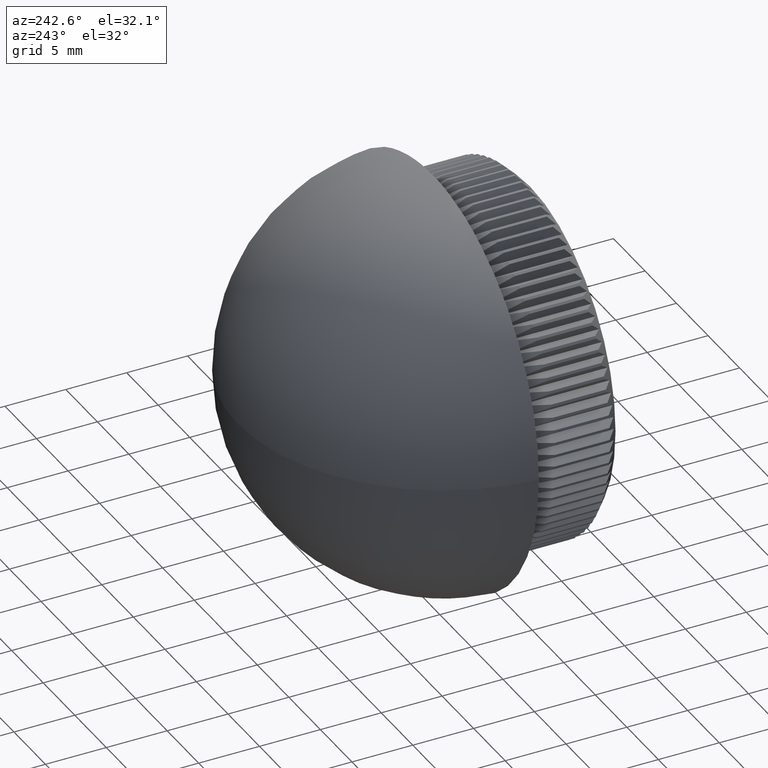
[diagram: clean part render]
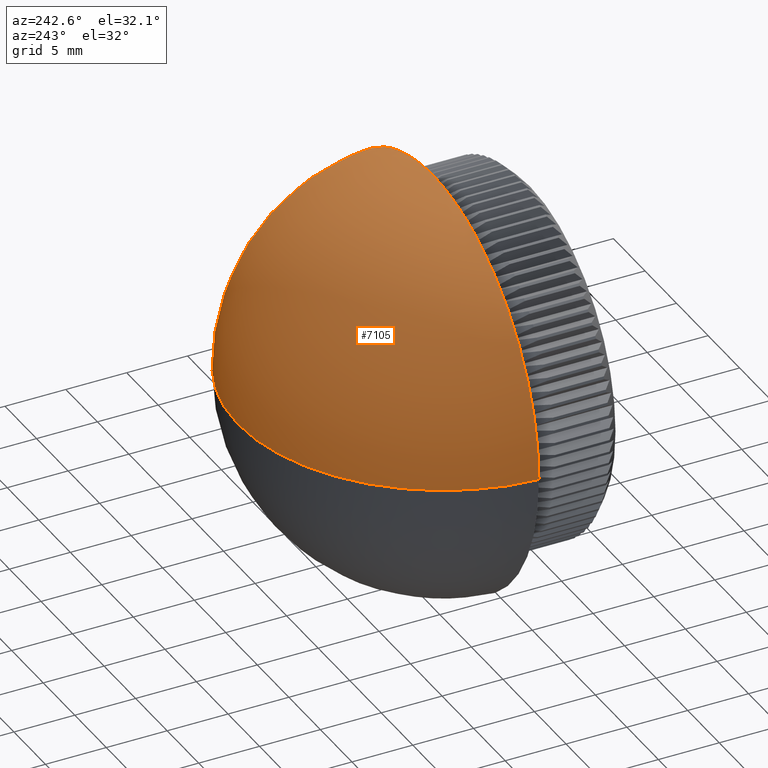
[diagram: same view with one face highlighted and labeled with its STEP entity id]
A machine part, auxiliary view. The second image highlights one B-rep face of the part: STEP entity #7105.
In plain terms, the highlighted spherical surface has radius 16.8726 mm.
Its self-contained STEP definition (entity closure, byte-faithful):
#145 = VERTEX_POINT ( 'NONE', #3077 ) ;
#428 = DIRECTION ( 'NONE',  ( -0.0000000000000000000, -1.000000000000000000, -0.0000000000000000000 ) ) ;
#800 = AXIS2_PLACEMENT_3D ( 'NONE', #14065, #3361, #12015 ) ;
#1845 = CIRCLE ( 'NONE', #1903, 16.85000000000000500 ) ;
#1903 = AXIS2_PLACEMENT_3D ( 'NONE', #21819, #428, #5976 ) ;
#2808 = CARTESIAN_POINT ( 'NONE',  ( 0.0000000000000000000, 7.127421874999999600, 0.0000000000000000000 ) ) ;
#3077 = CARTESIAN_POINT ( 'NONE',  ( 1.033147439707245100E-015, 24.00000000000000000, 0.0000000000000000000 ) ) ;
#3361 = DIRECTION ( 'NONE',  ( 0.0000000000000000000, 0.0000000000000000000, 1.000000000000000000 ) ) ;
#5535 = CARTESIAN_POINT ( 'NONE',  ( -16.85000000000000500, 7.999999999999998200, 2.063529856563290200E-015 ) ) ;
#5924 = EDGE_CURVE ( 'NONE', #145, #16692, #16172, .T. ) ;
#5976 = DIRECTION ( 'NONE',  ( 0.0000000000000000000, 0.0000000000000000000, -1.000000000000000000 ) ) ;
#6359 = SPHERICAL_SURFACE ( 'NONE', #800, 16.87257812500000400 ) ;
#7105 = ADVANCED_FACE ( 'NONE', ( #23105 ), #6359, .T. ) ;
#7991 = VERTEX_POINT ( 'NONE', #21283 ) ;
#9765 = DIRECTION ( 'NONE',  ( 1.224646799147353200E-016, -0.0000000000000000000, 1.000000000000000000 ) ) ;
#10751 = CIRCLE ( 'NONE', #21254, 16.87257812500000400 ) ;
#10754 = ORIENTED_EDGE ( 'NONE', *, *, #5924, .T. ) ;
#10769 = DIRECTION ( 'NONE',  ( 0.0000000000000000000, 0.0000000000000000000, -1.000000000000000000 ) ) ;
#11000 = CARTESIAN_POINT ( 'NONE',  ( 0.0000000000000000000, 7.127421874999999600, 0.0000000000000000000 ) ) ;
#11569 = EDGE_CURVE ( 'NONE', #7991, #16692, #1845, .T. ) ;
#12015 = DIRECTION ( 'NONE',  ( 1.000000000000000000, 0.0000000000000000000, 0.0000000000000000000 ) ) ;
#12283 = ORIENTED_EDGE ( 'NONE', *, *, #13908, .F. ) ;
#13006 = ORIENTED_EDGE ( 'NONE', *, *, #11569, .F. ) ;
#13908 = EDGE_CURVE ( 'NONE', #145, #7991, #10751, .T. ) ;
#14027 = EDGE_LOOP ( 'NONE', ( #12283, #10754, #13006 ) ) ;
#14065 = CARTESIAN_POINT ( 'NONE',  ( 0.0000000000000000000, 7.127421874999999600, 0.0000000000000000000 ) ) ;
#16172 = CIRCLE ( 'NONE', #19036, 16.87257812500000400 ) ;
#16692 = VERTEX_POINT ( 'NONE', #5535 ) ;
#18816 = DIRECTION ( 'NONE',  ( 1.000000000000000000, 0.0000000000000000000, -1.224646799147353000E-016 ) ) ;
#19036 = AXIS2_PLACEMENT_3D ( 'NONE', #2808, #9765, #18816 ) ;
#21254 = AXIS2_PLACEMENT_3D ( 'NONE', #11000, #10769, #21414 ) ;
#21283 = CARTESIAN_POINT ( 'NONE',  ( 16.85000000000000500, 7.999999999999998200, 0.0000000000000000000 ) ) ;
#21414 = DIRECTION ( 'NONE',  ( -1.000000000000000000, 0.0000000000000000000, 0.0000000000000000000 ) ) ;
#21819 = CARTESIAN_POINT ( 'NONE',  ( 0.0000000000000000000, 7.999999999999998200, 0.0000000000000000000 ) ) ;
#23105 = FACE_OUTER_BOUND ( 'NONE', #14027, .T. ) ;